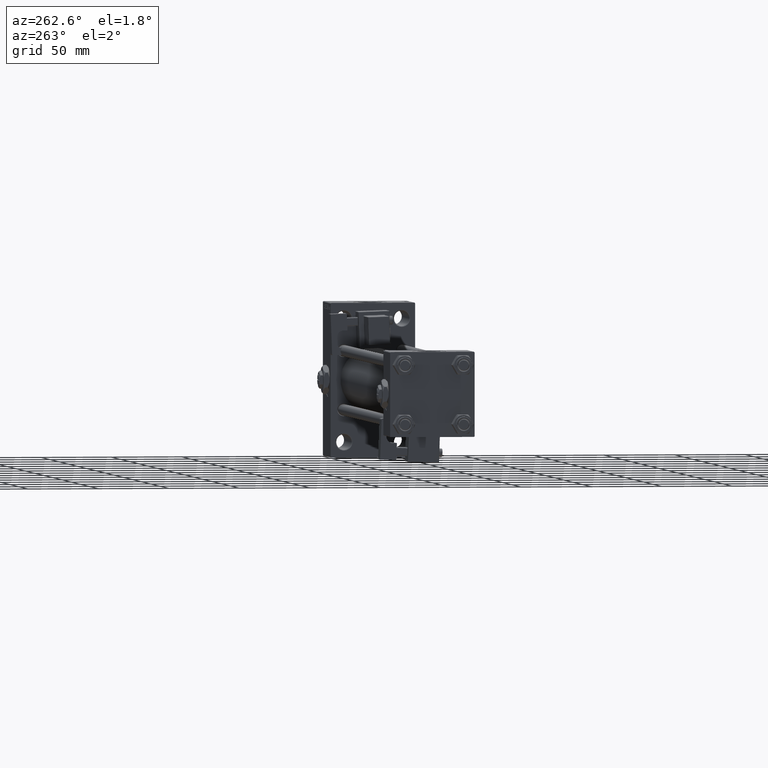
[diagram: clean part render]
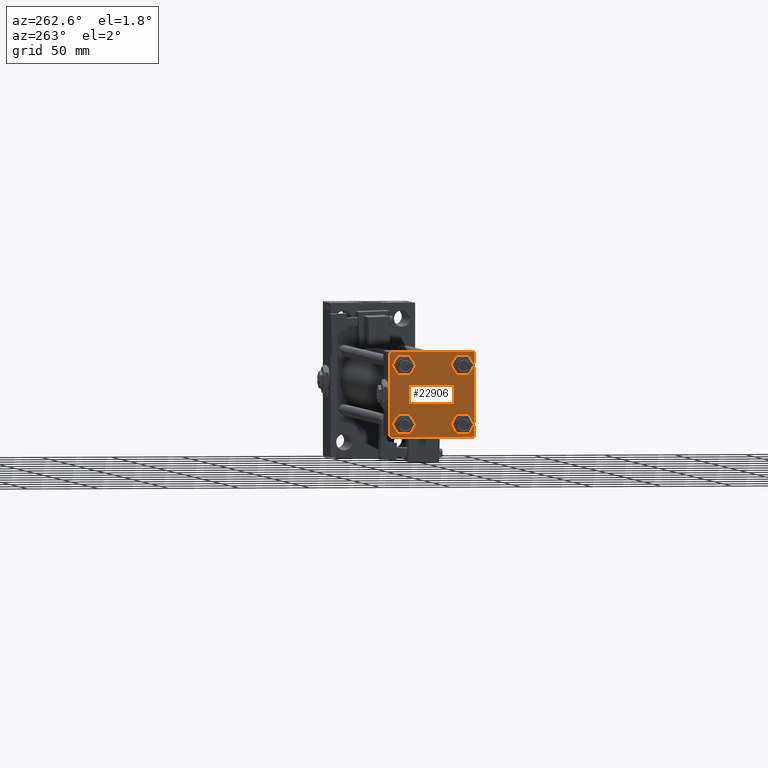
[diagram: same view with one face highlighted and labeled with its STEP entity id]
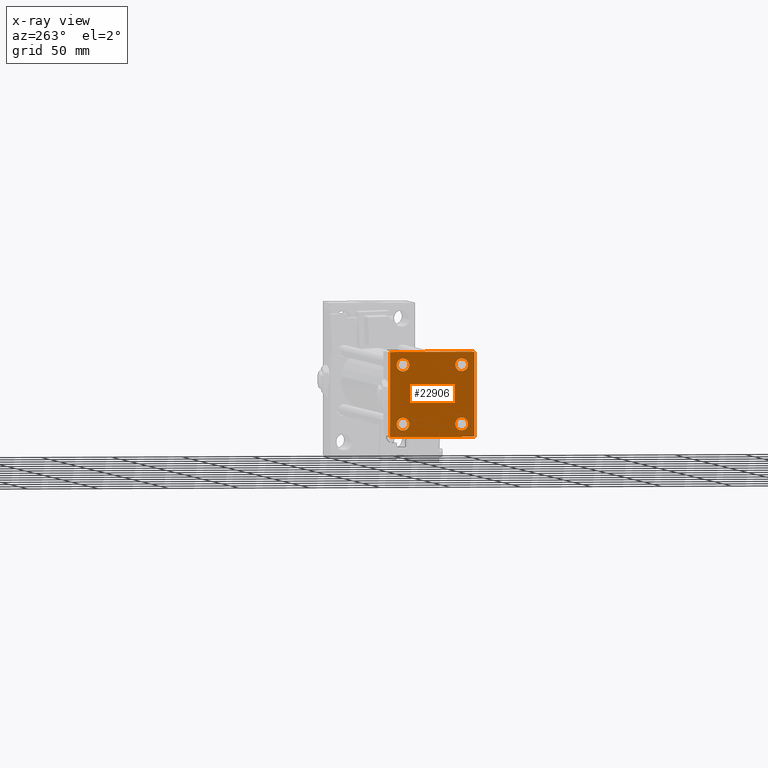
[diagram: x-ray of the same camera — body ghosted, the highlighted face saturated]
A machine part, auxiliary view. The second image highlights one B-rep face of the part: STEP entity #22906.
The next image is the same camera in x-ray: the body ghosted, the highlighted face saturated — about 0% of this face is hidden behind the body in this view.
In plain terms, the highlighted planar face has unit normal (-1, 0, 0).
Its self-contained STEP definition (entity closure, byte-faithful):
#236 = AXIS2_PLACEMENT_3D ( 'NONE', #2309, #10035, #9760 ) ;
#654 = CARTESIAN_POINT ( 'NONE',  ( 0.000000000000000000, 20.84999999999999787, 20.85000000000000142 ) ) ;
#2080 = EDGE_CURVE ( 'NONE', #41026, #20337, #39201, .T. ) ;
#2309 = CARTESIAN_POINT ( 'NONE',  ( 0.000000000000000000, -20.84999999999999076, -20.85000000000000497 ) ) ;
#2369 = VERTEX_POINT ( 'NONE', #29556 ) ;
#2441 = EDGE_CURVE ( 'NONE', #26685, #11434, #47600, .T. ) ;
#2475 = FACE_OUTER_BOUND ( 'NONE', #30845, .T. ) ;
#2713 = EDGE_LOOP ( 'NONE', ( #45623, #24980 ) ) ;
#2990 = CARTESIAN_POINT ( 'NONE',  ( 0.000000000000000000, 29.99999999999999289, -30.00000000000000000 ) ) ;
#3019 = FACE_BOUND ( 'NONE', #5140, .T. ) ;
#3288 = AXIS2_PLACEMENT_3D ( 'NONE', #40191, #10271, #44029 ) ;
#3396 = CARTESIAN_POINT ( 'NONE',  ( 0.000000000000000000, -30.00000000000000000, 29.49999999999999289 ) ) ;
#3451 = LINE ( 'NONE', #51614, #36761 ) ;
#3562 = FACE_BOUND ( 'NONE', #35720, .T. ) ;
#3633 = CIRCLE ( 'NONE', #8904, 4.500000000000017764 ) ;
#3846 = ORIENTED_EDGE ( 'NONE', *, *, #28019, .T. ) ;
#4191 = VERTEX_POINT ( 'NONE', #40542 ) ;
#4552 = LINE ( 'NONE', #12815, #46734 ) ;
#4744 = CARTESIAN_POINT ( 'NONE',  ( 0.000000000000000000, 20.84999999999999787, 16.34999999999998366 ) ) ;
#5025 = VECTOR ( 'NONE', #50586, 1000.000000000000000 ) ;
#5140 = EDGE_LOOP ( 'NONE', ( #37060, #50058 ) ) ;
#6156 = DIRECTION ( 'NONE',  ( 0.000000000000000000, 0.000000000000000000, -1.000000000000000000 ) ) ;
#6454 = DIRECTION ( 'NONE',  ( 1.000000000000000000, -0.000000000000000000, 0.000000000000000000 ) ) ;
#6468 = AXIS2_PLACEMENT_3D ( 'NONE', #47377, #6454, #39960 ) ;
#6646 = ORIENTED_EDGE ( 'NONE', *, *, #16244, .F. ) ;
#7512 = CARTESIAN_POINT ( 'NONE',  ( 0.000000000000000000, -20.84999999999999076, 20.85000000000000497 ) ) ;
#8332 = AXIS2_PLACEMENT_3D ( 'NONE', #654, #9727, #42167 ) ;
#8344 = DIRECTION ( 'NONE',  ( 1.000000000000000000, -0.000000000000000000, 0.000000000000000000 ) ) ;
#8768 = CARTESIAN_POINT ( 'NONE',  ( -0.000000000000000000, -29.74999999999999645, 29.74999999999999645 ) ) ;
#8904 = AXIS2_PLACEMENT_3D ( 'NONE', #46773, #26702, #35219 ) ;
#9154 = EDGE_CURVE ( 'NONE', #40850, #41026, #14828, .T. ) ;
#9727 = DIRECTION ( 'NONE',  ( 1.000000000000000000, -0.000000000000000000, 0.000000000000000000 ) ) ;
#9760 = DIRECTION ( 'NONE',  ( 0.000000000000000000, 0.000000000000000000, 1.000000000000000000 ) ) ;
#9809 = ORIENTED_EDGE ( 'NONE', *, *, #2080, .T. ) ;
#10035 = DIRECTION ( 'NONE',  ( 1.000000000000000000, -0.000000000000000000, 0.000000000000000000 ) ) ;
#10271 = DIRECTION ( 'NONE',  ( 1.000000000000000000, -0.000000000000000000, 0.000000000000000000 ) ) ;
#10599 = VERTEX_POINT ( 'NONE', #4744 ) ;
#10612 = CARTESIAN_POINT ( 'NONE',  ( 0.000000000000000000, -29.49999999999998579, 29.99999999999999289 ) ) ;
#10982 = DIRECTION ( 'NONE',  ( 0.000000000000000000, -1.000000000000000000, -1.156482317317871725E-16 ) ) ;
#11012 = CARTESIAN_POINT ( 'NONE',  ( 0.000000000000000000, 0.000000000000000000, 0.000000000000000000 ) ) ;
#11308 = CIRCLE ( 'NONE', #3288, 4.500000000000017764 ) ;
#11398 = VECTOR ( 'NONE', #13448, 1000.000000000000114 ) ;
#11434 = VERTEX_POINT ( 'NONE', #42927 ) ;
#12815 = CARTESIAN_POINT ( 'NONE',  ( 0.000000000000000000, 29.74999999999957723, -29.75000000000040501 ) ) ;
#13448 = DIRECTION ( 'NONE',  ( 0.000000000000000000, 0.7071067811865474617, -0.7071067811865474617 ) ) ;
#13803 = CARTESIAN_POINT ( 'NONE',  ( 0.000000000000000000, -30.00000000000000000, -29.50000000000001776 ) ) ;
#14004 = DIRECTION ( 'NONE',  ( 0.000000000000000000, -1.000000000000000000, -1.156482317317871725E-16 ) ) ;
#14685 = LINE ( 'NONE', #39944, #51632 ) ;
#14828 = LINE ( 'NONE', #2990, #36520 ) ;
#15407 = DIRECTION ( 'NONE',  ( -0.000000000000000000, 0.000000000000000000, 1.000000000000000000 ) ) ;
#15915 = CARTESIAN_POINT ( 'NONE',  ( 0.000000000000000000, 29.49999999999999289, 30.00000000000000000 ) ) ;
#16244 = EDGE_CURVE ( 'NONE', #48710, #43471, #3451, .T. ) ;
#17422 = AXIS2_PLACEMENT_3D ( 'NONE', #21520, #38286, #25108 ) ;
#18096 = LINE ( 'NONE', #18362, #11398 ) ;
#18331 = EDGE_CURVE ( 'NONE', #48710, #52636, #18096, .T. ) ;
#18362 = CARTESIAN_POINT ( 'NONE',  ( 0.000000000000000000, 29.74999999999999645, 29.74999999999999645 ) ) ;
#20337 = VERTEX_POINT ( 'NONE', #13803 ) ;
#20494 = CARTESIAN_POINT ( 'NONE',  ( 0.000000000000000000, 29.99999999999999289, -29.50000000000000000 ) ) ;
#21122 = EDGE_CURVE ( 'NONE', #31230, #43471, #47186, .T. ) ;
#21482 = CIRCLE ( 'NONE', #8332, 4.500000000000017764 ) ;
#21520 = CARTESIAN_POINT ( 'NONE',  ( 0.000000000000000000, 20.84999999999999787, -20.85000000000000142 ) ) ;
#21768 = CARTESIAN_POINT ( 'NONE',  ( 0.000000000000000000, 20.84999999999999787, 20.85000000000000142 ) ) ;
#22906 = ADVANCED_FACE ( 'NONE', ( #32963, #3562, #3019, #36820, #2475 ), #53310, .T. ) ;
#23535 = CARTESIAN_POINT ( 'NONE',  ( 0.000000000000000000, 29.49999999999997868, -30.00000000000000000 ) ) ;
#24349 = CIRCLE ( 'NONE', #53304, 4.500000000000017764 ) ;
#24980 = ORIENTED_EDGE ( 'NONE', *, *, #50243, .T. ) ;
#25108 = DIRECTION ( 'NONE',  ( 0.000000000000000000, 0.000000000000000000, 1.000000000000000000 ) ) ;
#25808 = VERTEX_POINT ( 'NONE', #45263 ) ;
#26534 = VECTOR ( 'NONE', #39746, 1000.000000000000114 ) ;
#26685 = VERTEX_POINT ( 'NONE', #50482 ) ;
#26702 = DIRECTION ( 'NONE',  ( 1.000000000000000000, -0.000000000000000000, 0.000000000000000000 ) ) ;
#28019 = EDGE_CURVE ( 'NONE', #30959, #40850, #4552, .T. ) ;
#29480 = DIRECTION ( 'NONE',  ( 0.000000000000000000, 0.000000000000000000, 1.000000000000000000 ) ) ;
#29554 = DIRECTION ( 'NONE',  ( -0.000000000000000000, -0.7071067811865574537, -0.7071067811865376918 ) ) ;
#29556 = CARTESIAN_POINT ( 'NONE',  ( 0.000000000000000000, -20.84999999999999076, 16.34999999999998721 ) ) ;
#29693 = ORIENTED_EDGE ( 'NONE', *, *, #21122, .T. ) ;
#29847 = CARTESIAN_POINT ( 'NONE',  ( 0.000000000000000000, 20.84999999999999787, -16.34999999999998366 ) ) ;
#30845 = EDGE_LOOP ( 'NONE', ( #35399, #3846, #32452, #9809, #51932, #29693, #6646, #52152 ) ) ;
#30959 = VERTEX_POINT ( 'NONE', #20494 ) ;
#31230 = VERTEX_POINT ( 'NONE', #3396 ) ;
#31916 = EDGE_CURVE ( 'NONE', #11434, #26685, #37166, .T. ) ;
#32427 = CIRCLE ( 'NONE', #51717, 4.500000000000017764 ) ;
#32452 = ORIENTED_EDGE ( 'NONE', *, *, #9154, .T. ) ;
#32492 = CARTESIAN_POINT ( 'NONE',  ( 0.000000000000000000, 20.84999999999999787, 25.35000000000001918 ) ) ;
#32963 = FACE_BOUND ( 'NONE', #34339, .T. ) ;
#33217 = CIRCLE ( 'NONE', #17422, 4.500000000000017764 ) ;
#33588 = CARTESIAN_POINT ( 'NONE',  ( 0.000000000000000000, 29.99999999999999289, 29.50000000000000000 ) ) ;
#34339 = EDGE_LOOP ( 'NONE', ( #42366, #50169 ) ) ;
#35123 = AXIS2_PLACEMENT_3D ( 'NONE', #11012, #44781, #15407 ) ;
#35219 = DIRECTION ( 'NONE',  ( 0.000000000000000000, 0.000000000000000000, 1.000000000000000000 ) ) ;
#35399 = ORIENTED_EDGE ( 'NONE', *, *, #41791, .T. ) ;
#35720 = EDGE_LOOP ( 'NONE', ( #48483, #52606 ) ) ;
#36116 = VERTEX_POINT ( 'NONE', #29847 ) ;
#36520 = VECTOR ( 'NONE', #10982, 1000.000000000000000 ) ;
#36761 = VECTOR ( 'NONE', #14004, 1000.000000000000000 ) ;
#36820 = FACE_BOUND ( 'NONE', #2713, .T. ) ;
#37060 = ORIENTED_EDGE ( 'NONE', *, *, #44369, .T. ) ;
#37144 = CARTESIAN_POINT ( 'NONE',  ( 0.000000000000000000, 29.99999999999999289, 30.00000000000000000 ) ) ;
#37166 = CIRCLE ( 'NONE', #6468, 4.500000000000017764 ) ;
#37193 = EDGE_CURVE ( 'NONE', #42409, #10599, #21482, .T. ) ;
#38286 = DIRECTION ( 'NONE',  ( 1.000000000000000000, -0.000000000000000000, 0.000000000000000000 ) ) ;
#38944 = DIRECTION ( 'NONE',  ( -0.000000000000000000, 0.7071067811865474617, 0.7071067811865474617 ) ) ;
#39201 = LINE ( 'NONE', #39475, #26534 ) ;
#39475 = CARTESIAN_POINT ( 'NONE',  ( 0.000000000000000000, -29.75000000000001066, -29.75000000000001066 ) ) ;
#39746 = DIRECTION ( 'NONE',  ( 0.000000000000000000, -0.7071067811865474617, 0.7071067811865474617 ) ) ;
#39944 = CARTESIAN_POINT ( 'NONE',  ( 0.000000000000000000, -30.00000000000000000, 29.99999999999999289 ) ) ;
#39960 = DIRECTION ( 'NONE',  ( 0.000000000000000000, 0.000000000000000000, 1.000000000000000000 ) ) ;
#40191 = CARTESIAN_POINT ( 'NONE',  ( 0.000000000000000000, -20.84999999999999076, 20.85000000000000497 ) ) ;
#40542 = CARTESIAN_POINT ( 'NONE',  ( 0.000000000000000000, -20.84999999999999076, 25.35000000000002274 ) ) ;
#40850 = VERTEX_POINT ( 'NONE', #23535 ) ;
#41026 = VERTEX_POINT ( 'NONE', #51249 ) ;
#41294 = DIRECTION ( 'NONE',  ( 1.000000000000000000, -0.000000000000000000, 0.000000000000000000 ) ) ;
#41791 = EDGE_CURVE ( 'NONE', #52636, #30959, #42343, .T. ) ;
#42167 = DIRECTION ( 'NONE',  ( 0.000000000000000000, 0.000000000000000000, 1.000000000000000000 ) ) ;
#42343 = LINE ( 'NONE', #37144, #5025 ) ;
#42366 = ORIENTED_EDGE ( 'NONE', *, *, #45715, .T. ) ;
#42409 = VERTEX_POINT ( 'NONE', #32492 ) ;
#42927 = CARTESIAN_POINT ( 'NONE',  ( 0.000000000000000000, -20.84999999999999076, -25.35000000000002274 ) ) ;
#43471 = VERTEX_POINT ( 'NONE', #10612 ) ;
#44029 = DIRECTION ( 'NONE',  ( 0.000000000000000000, 0.000000000000000000, 1.000000000000000000 ) ) ;
#44369 = EDGE_CURVE ( 'NONE', #36116, #25808, #33217, .T. ) ;
#44698 = VECTOR ( 'NONE', #38944, 1000.000000000000114 ) ;
#44781 = DIRECTION ( 'NONE',  ( -1.000000000000000000, 0.000000000000000000, -0.000000000000000000 ) ) ;
#45263 = CARTESIAN_POINT ( 'NONE',  ( 0.000000000000000000, 20.84999999999999787, -25.35000000000001918 ) ) ;
#45542 = EDGE_CURVE ( 'NONE', #2369, #4191, #11308, .T. ) ;
#45623 = ORIENTED_EDGE ( 'NONE', *, *, #37193, .T. ) ;
#45715 = EDGE_CURVE ( 'NONE', #4191, #2369, #24349, .T. ) ;
#46734 = VECTOR ( 'NONE', #29554, 999.9999999999998863 ) ;
#46773 = CARTESIAN_POINT ( 'NONE',  ( 0.000000000000000000, 20.84999999999999787, -20.85000000000000142 ) ) ;
#47186 = LINE ( 'NONE', #8768, #44698 ) ;
#47377 = CARTESIAN_POINT ( 'NONE',  ( 0.000000000000000000, -20.84999999999999076, -20.85000000000000497 ) ) ;
#47600 = CIRCLE ( 'NONE', #236, 4.500000000000017764 ) ;
#48087 = EDGE_CURVE ( 'NONE', #31230, #20337, #14685, .T. ) ;
#48483 = ORIENTED_EDGE ( 'NONE', *, *, #2441, .T. ) ;
#48710 = VERTEX_POINT ( 'NONE', #15915 ) ;
#50058 = ORIENTED_EDGE ( 'NONE', *, *, #53710, .T. ) ;
#50169 = ORIENTED_EDGE ( 'NONE', *, *, #45542, .T. ) ;
#50243 = EDGE_CURVE ( 'NONE', #10599, #42409, #32427, .T. ) ;
#50482 = CARTESIAN_POINT ( 'NONE',  ( 0.000000000000000000, -20.84999999999999076, -16.34999999999998721 ) ) ;
#50586 = DIRECTION ( 'NONE',  ( 0.000000000000000000, 0.000000000000000000, -1.000000000000000000 ) ) ;
#51249 = CARTESIAN_POINT ( 'NONE',  ( 0.000000000000000000, -29.50000000000000000, -30.00000000000000711 ) ) ;
#51614 = CARTESIAN_POINT ( 'NONE',  ( 0.000000000000000000, 29.99999999999999289, 30.00000000000000000 ) ) ;
#51632 = VECTOR ( 'NONE', #6156, 1000.000000000000000 ) ;
#51717 = AXIS2_PLACEMENT_3D ( 'NONE', #21768, #8344, #29480 ) ;
#51932 = ORIENTED_EDGE ( 'NONE', *, *, #48087, .F. ) ;
#52152 = ORIENTED_EDGE ( 'NONE', *, *, #18331, .T. ) ;
#52606 = ORIENTED_EDGE ( 'NONE', *, *, #31916, .T. ) ;
#52636 = VERTEX_POINT ( 'NONE', #33588 ) ;
#52830 = DIRECTION ( 'NONE',  ( 0.000000000000000000, 0.000000000000000000, 1.000000000000000000 ) ) ;
#53304 = AXIS2_PLACEMENT_3D ( 'NONE', #7512, #41294, #52830 ) ;
#53310 = PLANE ( 'NONE',  #35123 ) ;
#53710 = EDGE_CURVE ( 'NONE', #25808, #36116, #3633, .T. ) ;